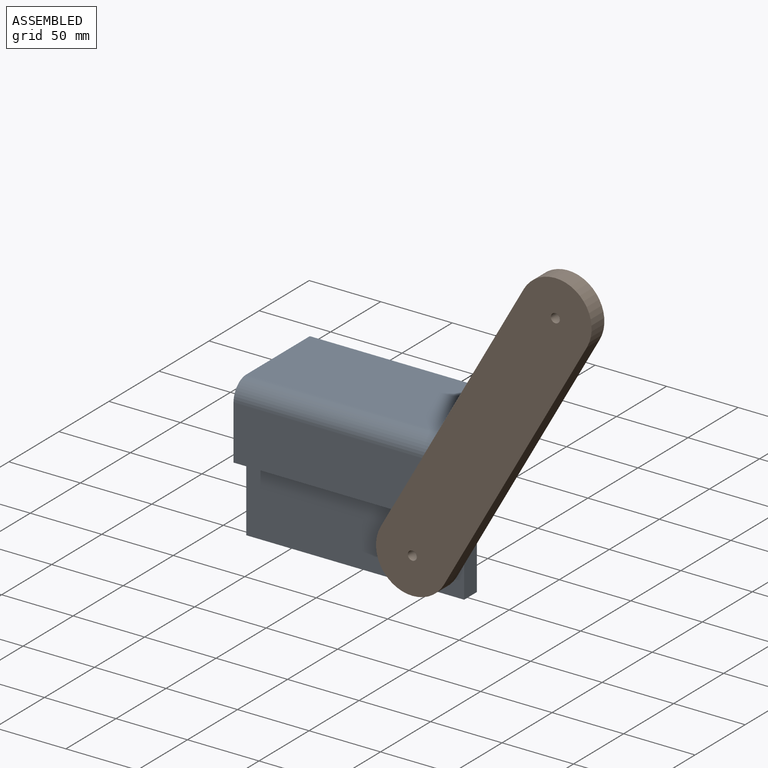
[diagram: assembled view]
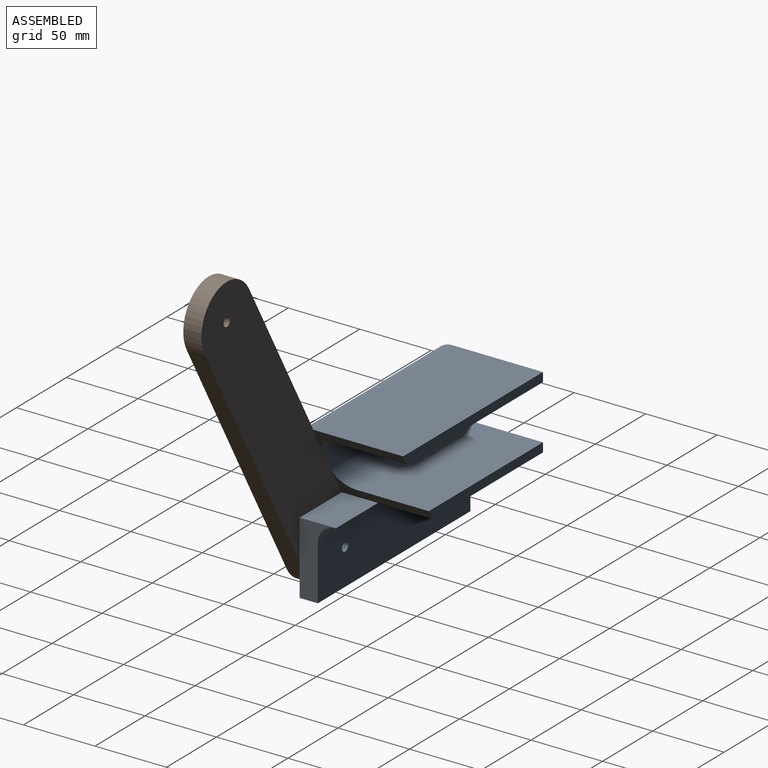
[diagram: assembled view, second angle]
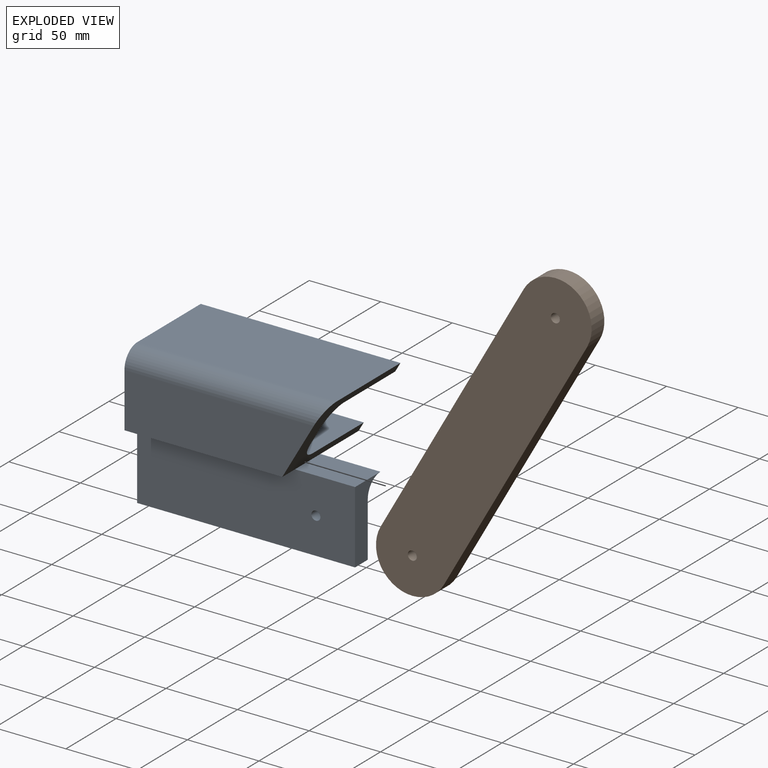
[diagram: exploded view]
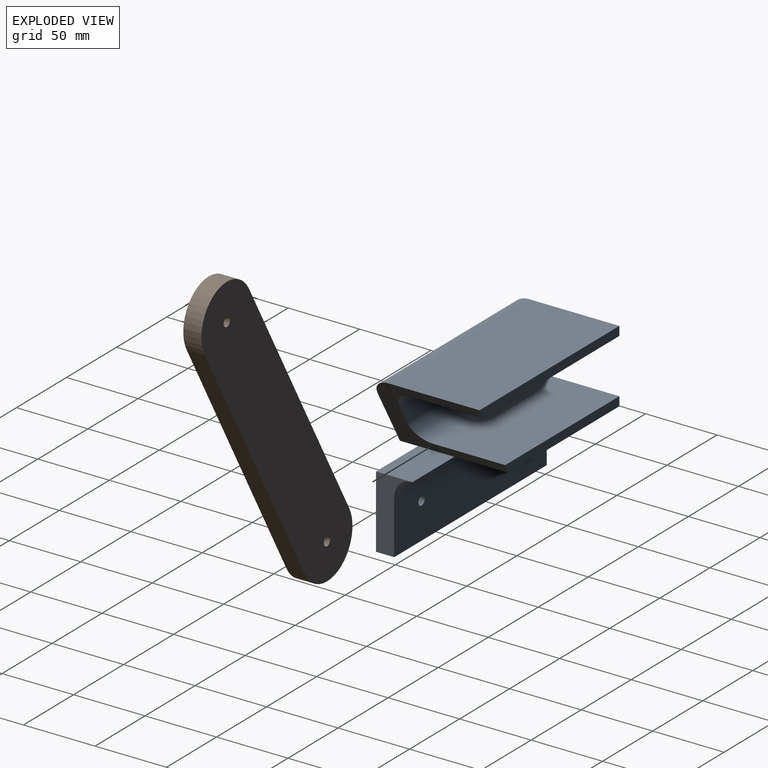
[diagram: exploded view, second angle]
ASSEMBLY  parts=2 mates=2
PART A: 21 faces, bbox 152.4x76.2x101.6 mm
  f0: plane 110.37x38.1mm, normal (0,0,1), area 4205.1mm2, adj f6,f7,f16,f19
  f1: plane 110.37x12.7mm, normal (0,0,1), area 1401.7mm2, adj f2,f10,f16,f19
  f2: plane 132.37x38.1mm, normal (0,-1,0), area 4624.2mm2, adj f1,f11,f16,f19
  f3: plane 139.7x63.5mm, normal (0,0,-1), area 8870.9mm2, adj f11,f12,f16,f19
  f4: cylinder r=12.7mm len=121.37mm, axis (-1,0,0), area 2328.1mm2, adj f5,f15,f16,f19
  f5: plane 114.04x50.8mm, normal (0,0,-1), area 5793.1mm2, adj f4,f6,f16,f19
  f6: plane 114.04x6.35mm, normal (0,1,0), area 712.5mm2, adj f0,f5,f16,f19
  f7: cylinder r=12.7mm len=152.4mm, axis (-1,0,0), area 3040.2mm2, adj f0,f8,f16,f17,f18
  f8: plane 152.4x38.1mm, normal (0,1,0), area 5774.8mm2, adj f7,f9,f16,f17,f20
  f9: plane 152.4x12.7mm, normal (0,0,1), area 1935.5mm2, adj f8,f10,f16,f17
  f10: plane 152.4x50.8mm, normal (0,-1,0), area 7710.3mm2, adj f1,f9,f16,f17,f18,f20
  f11: cylinder r=12.7mm len=139.7mm, axis (-1,0,0), area 2733.7mm2, adj f2,f3,f16,f19
  f12: plane 139.7x6.35mm, normal (0,1,0), area 875.5mm2, adj f3,f13,f16,f19
  f13: plane 136.03x50.8mm, normal (0,0,1), area 6910.5mm2, adj f12,f14,f16,f19
  f14: cylinder r=12.7mm len=136.03mm, axis (-1,0,0), area 2660.6mm2, adj f13,f15,f16,f19
  f15: plane 128.7x12.7mm, normal (0,1,0), area 1587.9mm2, adj f4,f14,f16,f19
  f16: plane 101.6x76.2mm, normal (1,0,0), area 2166mm2, adj f0,f1,f2,f3,f4,f5,f6,f7
  f17: plane 50.8x25.4mm, normal (-1,0,0), area 679.8mm2, adj f7,f8,f9,f10,f18
  f18: plane 42.03x25.4mm, normal (0,0,-1), area 1067.5mm2, adj f7,f10,f17,f19
  f19: plane 76.2x50.8mm, normal (-0.87,0,0.5), area 1716.1mm2, adj f0,f1,f2,f3,f4,f5,f6,f11
  f20: cylinder r=3.17mm len=12.7mm, axis (0,-1,0), area 253.4mm2, adj f8,f10
PART B: 8 faces, bbox 254x12.7x50.8 mm
  f0: cylinder r=25.4mm len=50.8mm, axis (0,1,0), area 1013.4mm2, adj f1,f5,f6,f7
  f1: plane 203.2x12.7mm, normal (0,0,1), area 2580.6mm2, adj f0,f2,f6,f7
  f2: cylinder r=25.4mm len=50.8mm, axis (0,1,0), area 1013.4mm2, adj f1,f5,f6,f7
  f3: cylinder r=3.17mm len=12.7mm, axis (0,1,0), area 253.4mm2, adj f6,f7
  f4: cylinder r=3.17mm len=12.7mm, axis (0,1,0), area 253.4mm2, adj f6,f7
  f5: plane 203.2x12.7mm, normal (0,0,-1), area 2580.6mm2, adj f0,f2,f6,f7
  f6: plane 254x50.8mm, normal (0,-1,0), area 12286.1mm2, adj f0,f1,f2,f3,f4,f5
  f7: plane 254x50.8mm, normal (0,1,0), area 12286.1mm2, adj f0,f1,f2,f3,f4,f5
PLACE A rot(axis=(0,-1,0),180deg) t=(-48.84,6.35,50.8)mm
PLACE B rot(axis=(0,1,0),119.5deg) t=(0,-12.7,0)mm
MATE cylindrical B.f0 <-> A.f20  axis (0,-1,0) through (0,-25.4,0)mm
MATE planar B.f7 <-> A.f10  axis (0,1,0) through (50.03,-12.7,88.43)mm
